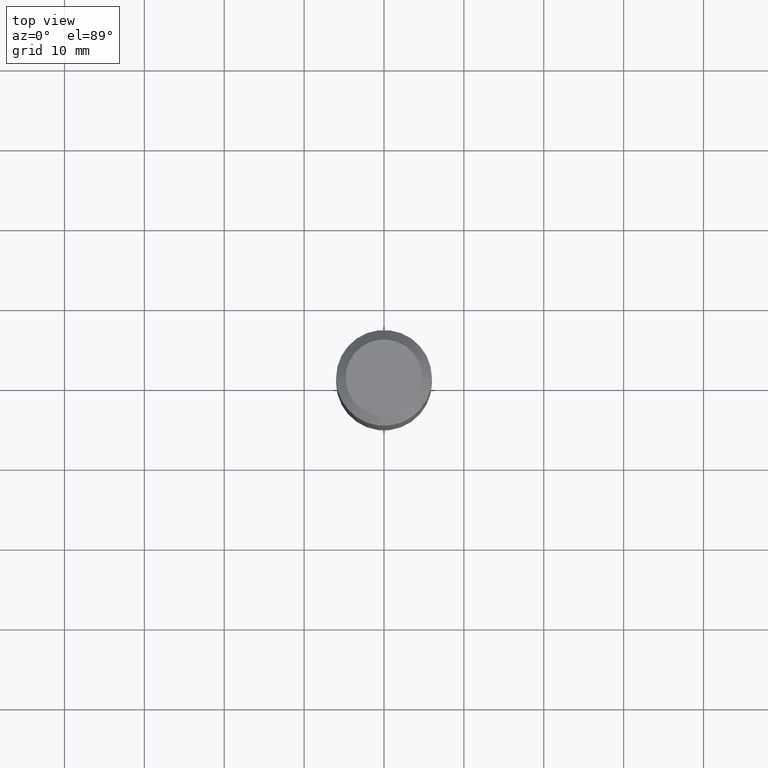
[diagram: clean part render]
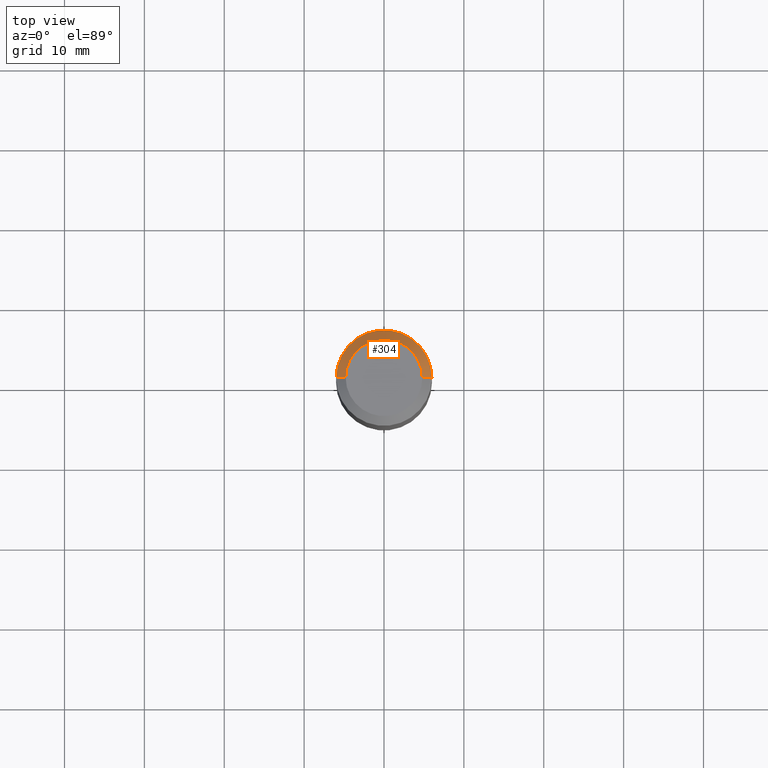
[diagram: same view with one face highlighted and labeled with its STEP entity id]
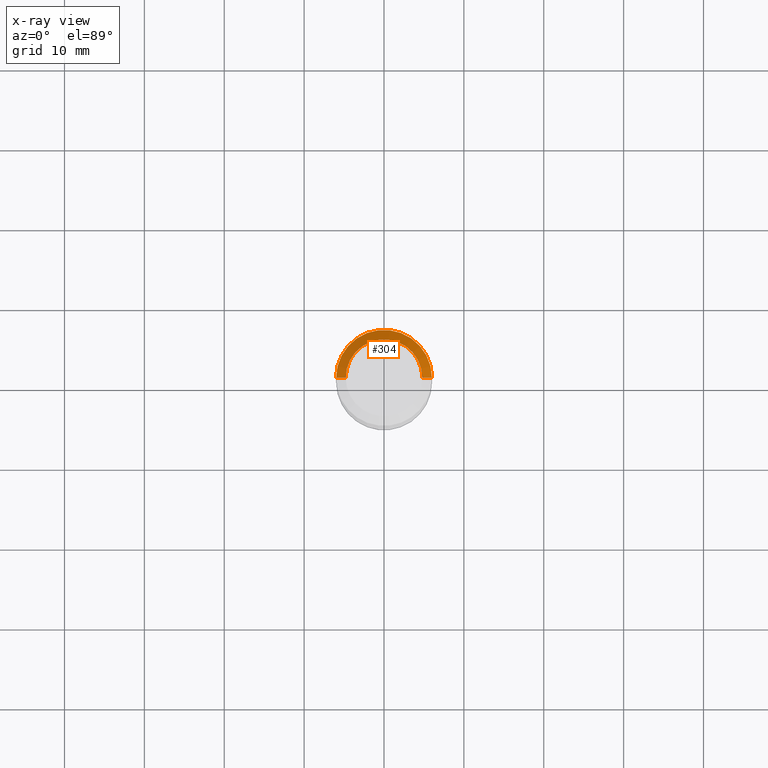
[diagram: x-ray of the same camera — body ghosted, the highlighted face saturated]
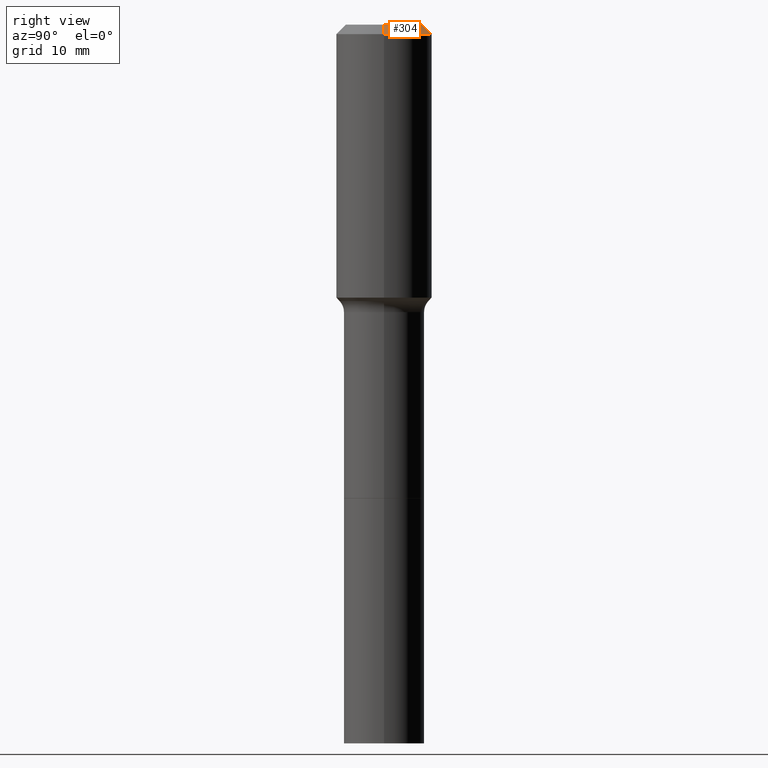
[diagram: same view with one face highlighted and labeled with its STEP entity id]
A machine part, top view. The second image highlights one B-rep face of the part: STEP entity #304.
The next image is the same camera in x-ray: the body ghosted, the highlighted face saturated — about 0% of this face is hidden behind the body in this view.
A second angle (right view) of the same face is appended — the face is thin or edge-on in the first view.
In plain terms, the highlighted conical surface has half-angle 45 deg.
Its self-contained STEP definition (entity closure, byte-faithful):
#15 = FACE_OUTER_BOUND ( 'NONE', #479, .T. ) ;
#25 = EDGE_CURVE ( 'NONE', #45, #323, #76, .T. ) ;
#37 = DIRECTION ( 'NONE',  ( -0.7071067811865453523, 2.468850131082234184E-15, -0.7071067811865496822 ) ) ;
#45 = VERTEX_POINT ( 'NONE', #111 ) ;
#47 = DIRECTION ( 'NONE',  ( 0.7071067811865453523, -7.319954787623248157E-15, -0.7071067811865496822 ) ) ;
#51 = CARTESIAN_POINT ( 'NONE',  ( 0.2361999999999999933, -1.814313362916447440E-15, -0.04724000000000028870 ) ) ;
#56 = DIRECTION ( 'NONE',  ( -1.000000000000000000, 6.982962677686266711E-15, 0.000000000000000000 ) ) ;
#76 = LINE ( 'NONE', #313, #150 ) ;
#82 = EDGE_CURVE ( 'NONE', #310, #170, #438, .T. ) ;
#87 = VECTOR ( 'NONE', #37, 39.37007874015748143 ) ;
#96 = ORIENTED_EDGE ( 'NONE', *, *, #208, .F. ) ;
#104 = CIRCLE ( 'NONE', #135, 0.2361999999999999933 ) ;
#107 = EDGE_CURVE ( 'NONE', #323, #170, #104, .T. ) ;
#111 = CARTESIAN_POINT ( 'NONE',  ( 0.1889600000000000168, -1.540873453589747738E-15, 3.855188123725863225E-18 ) ) ;
#114 = CARTESIAN_POINT ( 'NONE',  ( -0.2361999999999999933, 1.484438206022545019E-15, -0.04724000000000028870 ) ) ;
#131 = CARTESIAN_POINT ( 'NONE',  ( -0.1889600000000000168, 1.401969416799070942E-15, 3.855188123706346622E-18 ) ) ;
#135 = AXIS2_PLACEMENT_3D ( 'NONE', #510, #509, #275 ) ;
#150 = VECTOR ( 'NONE', #47, 39.37007874015748143 ) ;
#157 = CIRCLE ( 'NONE', #211, 0.1889600000000000168 ) ;
#168 = DIRECTION ( 'NONE',  ( 1.000000000000000000, -6.982962677686266711E-15, 4.876185090822587894E-29 ) ) ;
#170 = VERTEX_POINT ( 'NONE', #478 ) ;
#175 = ORIENTED_EDGE ( 'NONE', *, *, #82, .F. ) ;
#208 = EDGE_CURVE ( 'NONE', #45, #310, #157, .T. ) ;
#211 = AXIS2_PLACEMENT_3D ( 'NONE', #489, #455, #168 ) ;
#275 = DIRECTION ( 'NONE',  ( 1.000000000000000000, -6.982962677686266711E-15, 0.000000000000000000 ) ) ;
#304 = ADVANCED_FACE ( 'NONE', ( #15 ), #396, .T. ) ;
#305 = ORIENTED_EDGE ( 'NONE', *, *, #25, .T. ) ;
#310 = VERTEX_POINT ( 'NONE', #131 ) ;
#313 = CARTESIAN_POINT ( 'NONE',  ( 0.2361999999999999933, -1.785387205520586782E-15, -0.04724000000000028870 ) ) ;
#323 = VERTEX_POINT ( 'NONE', #51 ) ;
#370 = CARTESIAN_POINT ( 'NONE',  ( 1.155239464041865682E-30, -1.649375784469512105E-16, -0.04724000000000028870 ) ) ;
#396 = CONICAL_SURFACE ( 'NONE', #462, 0.2361999999999999933, 0.7853981633974452814 ) ;
#403 = ORIENTED_EDGE ( 'NONE', *, *, #107, .T. ) ;
#438 = LINE ( 'NONE', #114, #87 ) ;
#455 = DIRECTION ( 'NONE',  ( -2.445468806185136597E-29, 3.491481338843145583E-15, 1.000000000000000000 ) ) ;
#462 = AXIS2_PLACEMENT_3D ( 'NONE', #370, #486, #56 ) ;
#478 = CARTESIAN_POINT ( 'NONE',  ( -0.2361999999999999933, -7.533761502909610204E-16, -0.04724000000000028870 ) ) ;
#479 = EDGE_LOOP ( 'NONE', ( #96, #305, #403, #175 ) ) ;
#486 = DIRECTION ( 'NONE',  ( 2.445468806185136597E-29, -3.491481338843145583E-15, -1.000000000000000000 ) ) ;
#489 = CARTESIAN_POINT ( 'NONE',  ( -9.427742298522546243E-47, 1.346031739168365344E-32, 3.855188123715862256E-18 ) ) ;
#509 = DIRECTION ( 'NONE',  ( -2.445468806185136597E-29, 3.491481338843145583E-15, 1.000000000000000000 ) ) ;
#510 = CARTESIAN_POINT ( 'NONE',  ( 1.155239464041865682E-30, -1.649375784469512105E-16, -0.04724000000000028870 ) ) ;